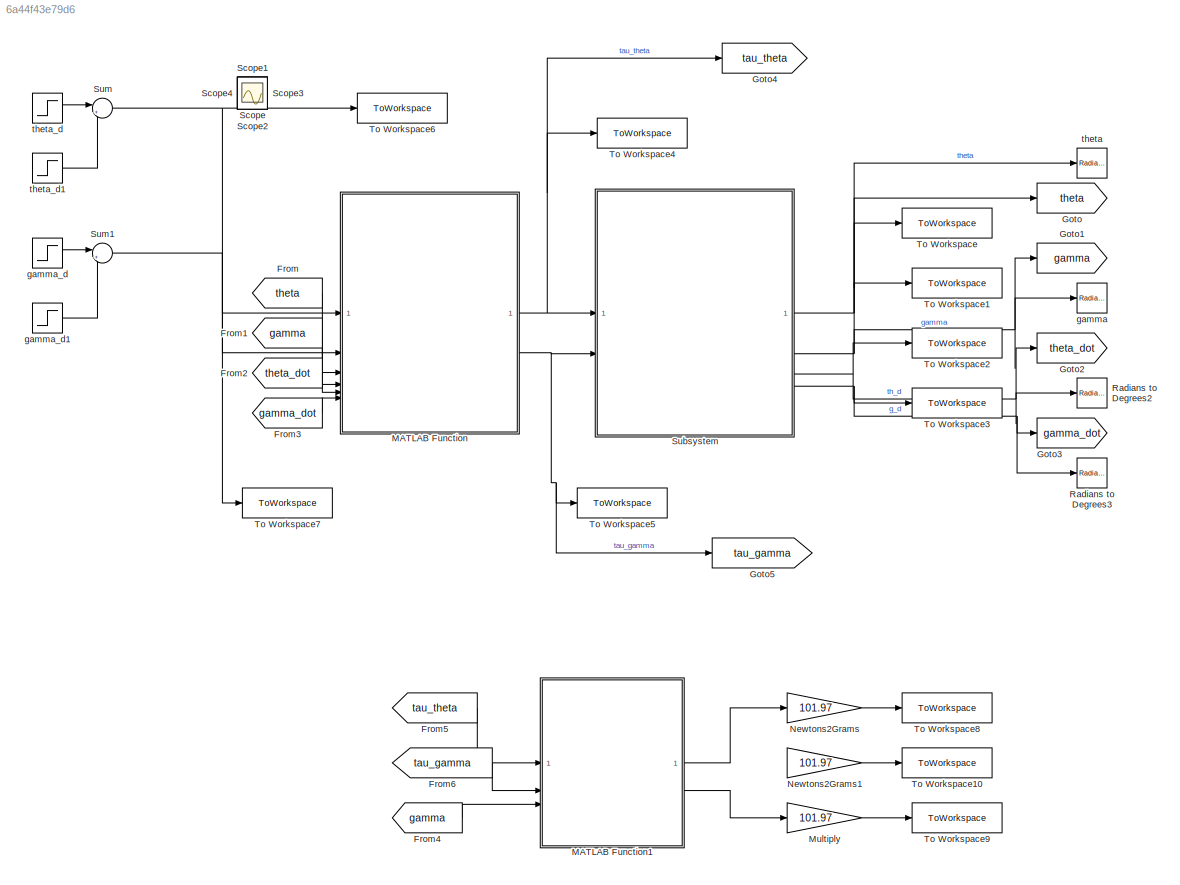
MODEL slx_6a44f43e79d6
KIND model
CONFIG AbsTol = auto
CONFIG EnableMultiTasking = off
CONFIG FixedStep = dt
CONFIG MaxStep = auto
CONFIG MinStep = auto
CONFIG RelTol = 1e-3
CONFIG SampleTimeConstraint = Unconstrained
CONFIG SolverName = FixedStepAuto
CONFIG StartTime = 0.0
CONFIG StopTime = tsim
BLOCK [From] From
  GotoTag = theta
BLOCK [From] From1
  GotoTag = gamma
BLOCK [From] From2
  GotoTag = theta_dot
BLOCK [From] From3
  GotoTag = gamma_dot
BLOCK [From] From4
  GotoTag = gamma
BLOCK [From] From5
  GotoTag = tau_theta
BLOCK [From] From6
  GotoTag = tau_gamma
BLOCK [Goto] Goto
  GotoTag = theta
BLOCK [Goto] Goto1
  GotoTag = gamma
BLOCK [Goto] Goto2
  GotoTag = theta_dot
BLOCK [Goto] Goto3
  GotoTag = gamma_dot
BLOCK [Goto] Goto4
  GotoTag = tau_theta
BLOCK [Goto] Goto5
  GotoTag = tau_gamma
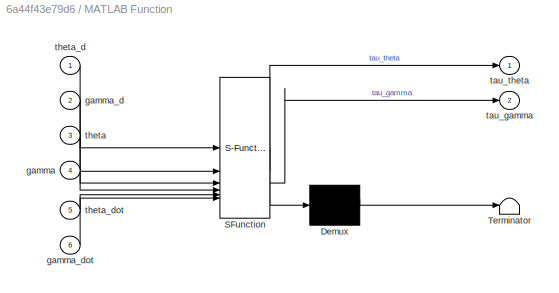
BLOCK [SubSystem] MATLAB Function
  ErrorFcn = Stateflow.Translate.translate
  LibrarySourceBlock = simulink/User-Defined\nFunctions/MATLAB Function
  PermitHierarchicalResolution = ExplicitOnly
  SFBlockType = MATLAB Function
  TreatAsAtomicUnit = on
BLOCK [Demux] MATLAB Function/ Demux 
  Outputs = 1
BLOCK [S-Function] MATLAB Function/ SFunction 
  EnableBusSupport = on
  FunctionName = sf_sfun
  Parameters = I_by,I_hy,Kp,Kv,g,l_b,l_h,m_h
  PortCounts = [6 3]
  SFcnIsStateOwnerBlock = off
  SFunctionDeploymentMode = off
  Tag = Stateflow S-Function 2
BLOCK [Terminator] MATLAB Function/ Terminator 
BLOCK [Inport] MATLAB Function/gamma
  Port = 4
BLOCK [Inport] MATLAB Function/gamma_d
  Port = 2
BLOCK [Inport] MATLAB Function/gamma_dot
  Port = 6
BLOCK [Outport] MATLAB Function/tau_gamma
  Port = 2
BLOCK [Outport] MATLAB Function/tau_theta
BLOCK [Inport] MATLAB Function/theta
  Port = 3
BLOCK [Inport] MATLAB Function/theta_d
BLOCK [Inport] MATLAB Function/theta_dot
  Port = 5
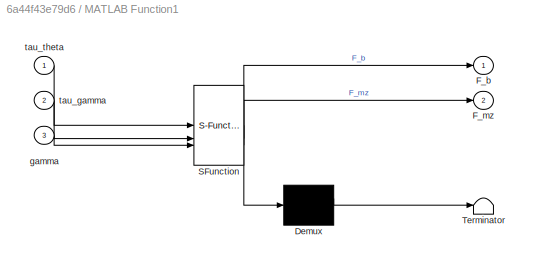
BLOCK [SubSystem] MATLAB Function1
  ErrorFcn = Stateflow.Translate.translate
  LibrarySourceBlock = simulink/User-Defined\nFunctions/MATLAB Function
  PermitHierarchicalResolution = ExplicitOnly
  SFBlockType = MATLAB Function
  TreatAsAtomicUnit = on
BLOCK [Demux] MATLAB Function1/ Demux 
  Outputs = 1
BLOCK [S-Function] MATLAB Function1/ SFunction 
  EnableBusSupport = on
  FunctionName = sf_sfun
  Parameters = alpha,l_a,l_b,l_h
  PortCounts = [3 3]
  SFcnIsStateOwnerBlock = off
  SFunctionDeploymentMode = off
  Tag = Stateflow S-Function 1
BLOCK [Terminator] MATLAB Function1/ Terminator 
BLOCK [Outport] MATLAB Function1/F_b
BLOCK [Outport] MATLAB Function1/F_mz
  Port = 2
BLOCK [Inport] MATLAB Function1/gamma
  Port = 3
BLOCK [Inport] MATLAB Function1/tau_gamma
  Port = 2
BLOCK [Inport] MATLAB Function1/tau_theta
BLOCK [Gain] Multiply
  Gain = 101.97
BLOCK [Gain] Newtons2Grams
  Gain = 101.97
BLOCK [Gain] Newtons2Grams1
  Gain = 101.97
BLOCK [Reference] Radians to Degrees2  REF=simulink_extras/Transformations/Radians
to Degrees
  SourceBlock = simulink_extras/Transformations/Radians\nto Degrees
  SourceType = RadiansToDegrees
BLOCK [Reference] Radians to Degrees3  REF=simulink_extras/Transformations/Radians
to Degrees
  SourceBlock = simulink_extras/Transformations/Radians\nto Degrees
  SourceType = RadiansToDegrees
BLOCK [Scope] Scope
  Floating = off
  IOType = viewer
  NumInputPorts = 1
  ScopeSpecificationString = Simulink.scopes.TimeScopeBlockCfg('CurrentConfiguration', extmgr.ConfigurationSet(extmgr.Configuration('Core','General UI',true,'FigureColor',[1 1 1]),extmgr.Configuration('Core','Source UI',true),extmgr.Configuration('Sources','WiredSimulink',true),extmgr.Configuration('Visuals','Time Domain',true,'SerializedDisplays',{struct('MinYLimReal','-37.5','MaxYLimReal','37.5','YLabelReal','','MinYLimMag'...<+1639ch>
BLOCK [Scope] Scope1
  Floating = off
  IOType = viewer
  NumInputPorts = 1
  ScopeSpecificationString = Simulink.scopes.TimeScopeBlockCfg('CurrentConfiguration', extmgr.ConfigurationSet(extmgr.Configuration('Core','General UI',true),extmgr.Configuration('Core','Source UI',true),extmgr.Configuration('Sources','WiredSimulink',true,'DataLoggingVariableName','ScopeData1'),extmgr.Configuration('Visuals','Time Domain',true,'SerializedDisplays',{struct('MinYLimReal','-28.89705','MaxYLimReal','28.7068','YLa...<+1404ch>
BLOCK [Scope] Scope2
  Floating = off
  IOType = viewer
  NumInputPorts = 1
  ScopeSpecificationString = Simulink.scopes.TimeScopeBlockCfg('CurrentConfiguration', extmgr.ConfigurationSet(extmgr.Configuration('Core','General UI',true,'FigureColor',[1 1 1]),extmgr.Configuration('Core','Source UI',true),extmgr.Configuration('Sources','WiredSimulink',true,'DataLoggingVariableName','ScopeData1'),extmgr.Configuration('Visuals','Time Domain',true,'SerializedDisplays',{struct('MinYLimReal','-0.00474','MaxYLi...<+1959ch>
BLOCK [Scope] Scope3
  Floating = off
  IOType = viewer
  NumInputPorts = 1
  ScopeSpecificationString = Simulink.scopes.TimeScopeBlockCfg('CurrentConfiguration', extmgr.ConfigurationSet(extmgr.Configuration('Core','General UI',true),extmgr.Configuration('Core','Source UI',true),extmgr.Configuration('Sources','WiredSimulink',true,'DataLoggingVariableName','ScopeData1'),extmgr.Configuration('Visuals','Time Domain',true,'SerializedDisplays',{struct('MinYLimReal','-0.00664','MaxYLimReal','0.05624','YLab...<+1430ch>
BLOCK [Scope] Scope4
  Floating = off
  IOType = viewer
  NumInputPorts = 1
  ScopeSpecificationString = Simulink.scopes.TimeScopeBlockCfg('CurrentConfiguration', extmgr.ConfigurationSet(extmgr.Configuration('Core','General UI',true,'FigureColor',[1 1 1]),extmgr.Configuration('Core','Source UI',true),extmgr.Configuration('Sources','WiredSimulink',true,'DataLoggingVariableName','ScopeData1'),extmgr.Configuration('Visuals','Time Domain',true,'SerializedDisplays',{struct('MinYLimReal','-0.67669','MaxYLi...<+2065ch>
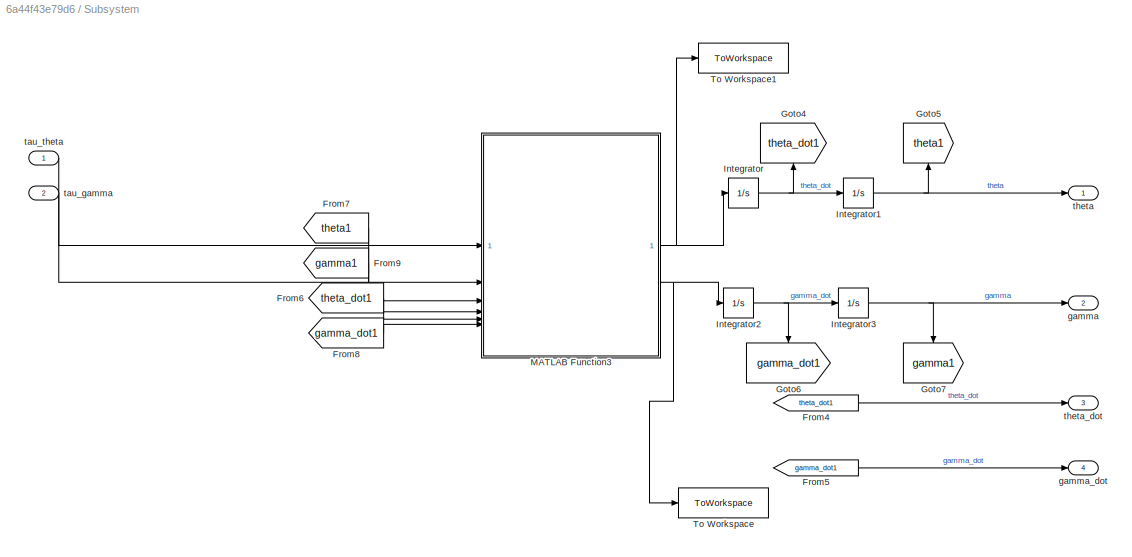
BLOCK [SubSystem] Subsystem
BLOCK [From] Subsystem/From4
  GotoTag = theta_dot1
BLOCK [From] Subsystem/From5
  GotoTag = gamma_dot1
BLOCK [From] Subsystem/From6
  GotoTag = theta_dot1
BLOCK [From] Subsystem/From7
  GotoTag = theta1
BLOCK [From] Subsystem/From8
  GotoTag = gamma_dot1
BLOCK [From] Subsystem/From9
  GotoTag = gamma1
BLOCK [Goto] Subsystem/Goto4
  GotoTag = theta_dot1
  NameLocation = right
BLOCK [Goto] Subsystem/Goto5
  GotoTag = theta1
  NameLocation = right
BLOCK [Goto] Subsystem/Goto6
  GotoTag = gamma_dot1
  NameLocation = left
BLOCK [Goto] Subsystem/Goto7
  GotoTag = gamma1
  NameLocation = left
BLOCK [Integrator] Subsystem/Integrator
  ContinuousStateAttributes = 'theta_dot'
BLOCK [Integrator] Subsystem/Integrator1
  ContinuousStateAttributes = 'theta'
  InitialCondition = deg2rad(-30)
  LowerSaturationLimit = -pi/3
  UpperSaturationLimit = 2*pi/9
BLOCK [Integrator] Subsystem/Integrator2
  ContinuousStateAttributes = 'gamma_dot'
BLOCK [Integrator] Subsystem/Integrator3
  ContinuousStateAttributes = 'gamma'
  InitialCondition = deg2rad(30)
  LowerSaturationLimit = -pi/3
  UpperSaturationLimit = 2*pi/9
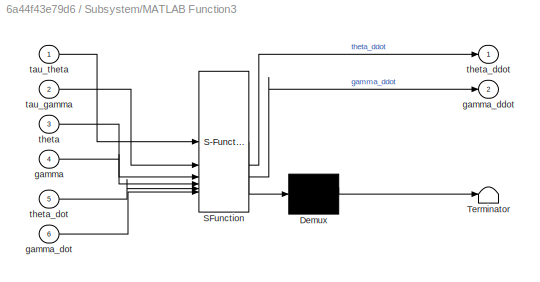
BLOCK [SubSystem] Subsystem/MATLAB Function3
  ErrorFcn = Stateflow.Translate.translate
  LibrarySourceBlock = simulink/User-Defined\nFunctions/MATLAB Function
  PermitHierarchicalResolution = ExplicitOnly
  SFBlockType = MATLAB Function
  TreatAsAtomicUnit = on
BLOCK [Demux] Subsystem/MATLAB Function3/ Demux 
  Outputs = 1
BLOCK [S-Function] Subsystem/MATLAB Function3/ SFunction 
  EnableBusSupport = on
  FunctionName = sf_sfun
  Parameters = I_by,I_hy,g,l_b,l_h,m_h
  PortCounts = [6 3]
  SFcnIsStateOwnerBlock = off
  SFunctionDeploymentMode = off
  Tag = Stateflow S-Function 3
BLOCK [Terminator] Subsystem/MATLAB Function3/ Terminator 
BLOCK [Inport] Subsystem/MATLAB Function3/gamma
  Port = 4
BLOCK [Outport] Subsystem/MATLAB Function3/gamma_ddot
  Port = 2
BLOCK [Inport] Subsystem/MATLAB Function3/gamma_dot
  Port = 6
BLOCK [Inport] Subsystem/MATLAB Function3/tau_gamma
  Port = 2
BLOCK [Inport] Subsystem/MATLAB Function3/tau_theta
BLOCK [Inport] Subsystem/MATLAB Function3/theta
  Port = 3
BLOCK [Outport] Subsystem/MATLAB Function3/theta_ddot
BLOCK [Inport] Subsystem/MATLAB Function3/theta_dot
  Port = 5
BLOCK [ToWorkspace] Subsystem/To Workspace
  FixptAsFi = on
  MaxDataPoints = inf
  SampleTime = -1
  SaveFormat = Timeseries
  VariableName = gamma_ddot
BLOCK [ToWorkspace] Subsystem/To Workspace1
  FixptAsFi = on
  MaxDataPoints = inf
  SampleTime = -1
  SaveFormat = Timeseries
  VariableName = theta_ddot
BLOCK [Outport] Subsystem/gamma
  Port = 2
BLOCK [Outport] Subsystem/gamma_dot
  Port = 4
BLOCK [Inport] Subsystem/tau_gamma
  Port = 2
BLOCK [Inport] Subsystem/tau_theta
BLOCK [Outport] Subsystem/theta
BLOCK [Outport] Subsystem/theta_dot
  Port = 3
BLOCK [Sum] Sum
  Inputs = |++
BLOCK [Sum] Sum1
  Inputs = |++
BLOCK [ToWorkspace] To Workspace
  FixptAsFi = on
  MaxDataPoints = inf
  SampleTime = dt
  SaveFormat = Timeseries
  VariableName = theta
BLOCK [ToWorkspace] To Workspace1
  FixptAsFi = on
  MaxDataPoints = inf
  SampleTime = dt
  SaveFormat = Timeseries
  VariableName = gamma
BLOCK [ToWorkspace] To Workspace10
  FixptAsFi = on
  MaxDataPoints = inf
  SampleTime = dt
  SaveFormat = Timeseries
  VariableName = F_D
BLOCK [ToWorkspace] To Workspace2
  FixptAsFi = on
  MaxDataPoints = inf
  SampleTime = dt
  SaveFormat = Timeseries
  VariableName = theta_dot
BLOCK [ToWorkspace] To Workspace3
  FixptAsFi = on
  MaxDataPoints = inf
  SampleTime = dt
  SaveFormat = Timeseries
  VariableName = gamma_dot
BLOCK [ToWorkspace] To Workspace4
  FixptAsFi = on
  MaxDataPoints = inf
  SampleTime = dt
  SaveFormat = Timeseries
  VariableName = tau_theta
BLOCK [ToWorkspace] To Workspace5
  FixptAsFi = on
  MaxDataPoints = inf
  SampleTime = dt
  SaveFormat = Timeseries
  VariableName = tau_gamma
BLOCK [ToWorkspace] To Workspace6
  FixptAsFi = on
  MaxDataPoints = inf
  SampleTime = dt
  SaveFormat = Timeseries
  VariableName = theta_d
BLOCK [ToWorkspace] To Workspace7
  FixptAsFi = on
  MaxDataPoints = inf
  SampleTime = dt
  SaveFormat = Timeseries
  VariableName = gamma_d
BLOCK [ToWorkspace] To Workspace8
  FixptAsFi = on
  MaxDataPoints = inf
  SampleTime = dt
  SaveFormat = Timeseries
  VariableName = F_bz
BLOCK [ToWorkspace] To Workspace9
  FixptAsFi = on
  MaxDataPoints = inf
  SampleTime = dt
  SaveFormat = Timeseries
  VariableName = F_mz
BLOCK [Reference] gamma  REF=simulink_extras/Transformations/Radians
to Degrees
  SourceBlock = simulink_extras/Transformations/Radians\nto Degrees
  SourceType = RadiansToDegrees
BLOCK [Step] gamma_d
  After = deg2rad(15)
  Before = deg2rad(30)
  SampleTime = dt
BLOCK [Step] gamma_d1
  After = deg2rad(-15)
  SampleTime = dt
  Time = 5
BLOCK [Reference] theta  REF=simulink_extras/Transformations/Radians
to Degrees
  SourceBlock = simulink_extras/Transformations/Radians\nto Degrees
  SourceType = RadiansToDegrees
BLOCK [Step] theta_d
  After = deg2rad(-15)
  Before = deg2rad(-30)
  SampleTime = dt
BLOCK [Step] theta_d1
  After = deg2rad(15)
  SampleTime = dt
  Time = 5
LINE From1:1 -> MATLAB Function:4
LINE From2:1 -> MATLAB Function:5
LINE From3:1 -> MATLAB Function:6
LINE From4:1 -> MATLAB Function1:3
LINE From5:1 -> MATLAB Function1:1
LINE From6:1 -> MATLAB Function1:2
LINE From:1 -> MATLAB Function:3
LINE MATLAB Function1:1 -> Newtons2Grams:1
LINE MATLAB Function1:2 -> Multiply:1
NET MATLAB Function:1 -> Goto4:1, Subsystem:1, To Workspace4:1
NET MATLAB Function:2 -> Goto5:1, Subsystem:2, To Workspace5:1
LINE Multiply:1 -> To Workspace9:1
LINE Newtons2Grams1:1 -> To Workspace10:1
LINE Newtons2Grams:1 -> To Workspace8:1
LINE Subsystem/From4:1 -> Subsystem/theta_dot:1
LINE Subsystem/From5:1 -> Subsystem/gamma_dot:1
LINE Subsystem/From6:1 -> Subsystem/MATLAB Function3:5
LINE Subsystem/From7:1 -> Subsystem/MATLAB Function3:3
LINE Subsystem/From8:1 -> Subsystem/MATLAB Function3:6
LINE Subsystem/From9:1 -> Subsystem/MATLAB Function3:4
NET Subsystem/Integrator1:1 -> Subsystem/Goto5:1, Subsystem/theta:1
NET Subsystem/Integrator2:1 -> Subsystem/Goto6:1, Subsystem/Integrator3:1
NET Subsystem/Integrator3:1 -> Subsystem/Goto7:1, Subsystem/gamma:1
NET Subsystem/Integrator:1 -> Subsystem/Goto4:1, Subsystem/Integrator1:1
NET Subsystem/MATLAB Function3:1 -> Subsystem/Integrator:1, Subsystem/To Workspace1:1
NET Subsystem/MATLAB Function3:2 -> Subsystem/Integrator2:1, Subsystem/To Workspace:1
LINE Subsystem/tau_gamma:1 -> Subsystem/MATLAB Function3:2
LINE Subsystem/tau_theta:1 -> Subsystem/MATLAB Function3:1
NET Subsystem:1 -> Goto:1, To Workspace:1, theta:1
NET Subsystem:2 -> Goto1:1, To Workspace1:1, gamma:1
NET Subsystem:3 -> Goto2:1, Radians to Degrees2:1, To Workspace2:1
NET Subsystem:4 -> Goto3:1, Radians to Degrees3:1, To Workspace3:1
NET Sum1:1 -> MATLAB Function:2, To Workspace7:1
NET Sum:1 -> MATLAB Function:1, To Workspace6:1
LINE gamma_d1:1 -> Sum1:2
LINE gamma_d:1 -> Sum1:1
LINE theta_d1:1 -> Sum:2
LINE theta_d:1 -> Sum:1
note: NET lines group one-source signal fan-out (src -> all destinations, sorted); 1:1 wires keep LINE
CHART MATLAB Function1 states=1 transitions=1
  STATE_LABEL 'eML_blk_kernel()'
  STATE_LABEL 'SCRIPT:\nfunction [F_b, F_mz] = forces(tau_theta, tau_gamma, gamma, l_a, l_h, l_b, alpha)\n\ntau = [tau_theta; tau_gamma];\n\n% tau = [l_ec, l_h*cos(gamma)+l_ec; l_ej*cos(gamma), l_m] * F;\n\nF = [l_a*cos(alpha),-l_b*cos(gamma)-l_h; 0, -l_h] \\ tau;\n\n% F(2) = tau_gamma/-l_h;\n% \n% F(1) = (tau_theta - (F(2)*(-l_h-l_b*cos(gamma))))/(l_a);\n\nF_b = F(1);\n% D = F(2);\nF_mz = F(2)/cos(deg2rad(10));\n'
CHART MATLAB Function states=1 transitions=1
  STATE_LABEL 'eML_blk_kernel()'
  STATE_LABEL 'SCRIPT:\nfunction [tau_theta, tau_gamma] = controller(theta_d, gamma_d, theta, gamma, theta_dot, gamma_dot, Kv, Kp, I_hy, I_by, l_h, l_b, m_h, g)\n\nm11 = I_hy+I_by+m_h*(l_b^2+l_h^2)+2*l_b*l_h*m_h*cos(gamma);\nm12 = I_hy+m_h*l_h^2+l_b*l_h*m_h*cos(gamma);\nm22 = I_hy + l_h^2*m_h;\n\nM=[m11 m12;\n   m12 m22];\n\n\nc11 = -l_b*l_h*m_h*sin(gamma)*gamma_dot;\nc12 = -(gamma_dot+theta_dot)*l_b*l_h*m_h*sin(gamma);\nc21...<+310ch>'
CHART Subsystem/MATLAB Function3 states=1 transitions=1
  STATE_LABEL 'eML_blk_kernel()'
  STATE_LABEL 'SCRIPT:\nfunction [theta_ddot, gamma_ddot] = fcn(tau_theta, tau_gamma,theta,gamma,theta_dot,gamma_dot, I_hy, m_h, l_b, l_h, I_by,g)\n\ntau = [tau_theta;tau_gamma];\n\nm11 = I_hy+I_by+m_h*(l_b^2+l_h^2)+2*l_b*l_h*m_h*cos(gamma);\nm12 = I_hy+m_h*l_h^2+l_b*l_h*m_h*cos(gamma);\nm22 = I_hy + l_h^2*m_h;\n\nM=[m11 m12;\n   m12 m22];\n\n\nc11 = -l_b*l_h*m_h*sin(gamma)*gamma_dot;\nc12 = -(gamma_dot+theta_dot)*l_b*l_h*m_h...<+297ch>'
CHART  states=0 transitions=0
CHART  states=0 transitions=0
CHART  states=0 transitions=0
